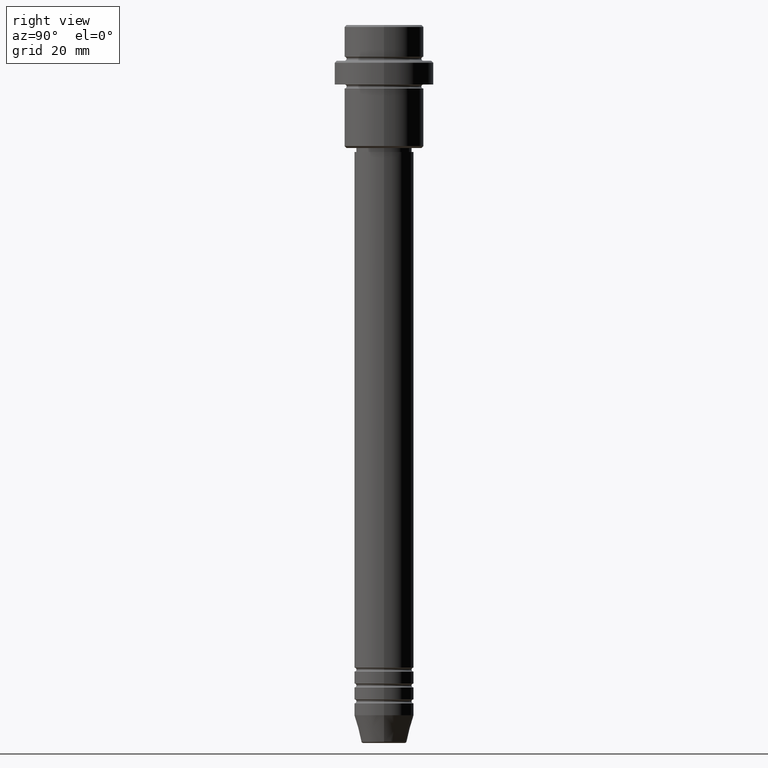
[diagram: clean part render]
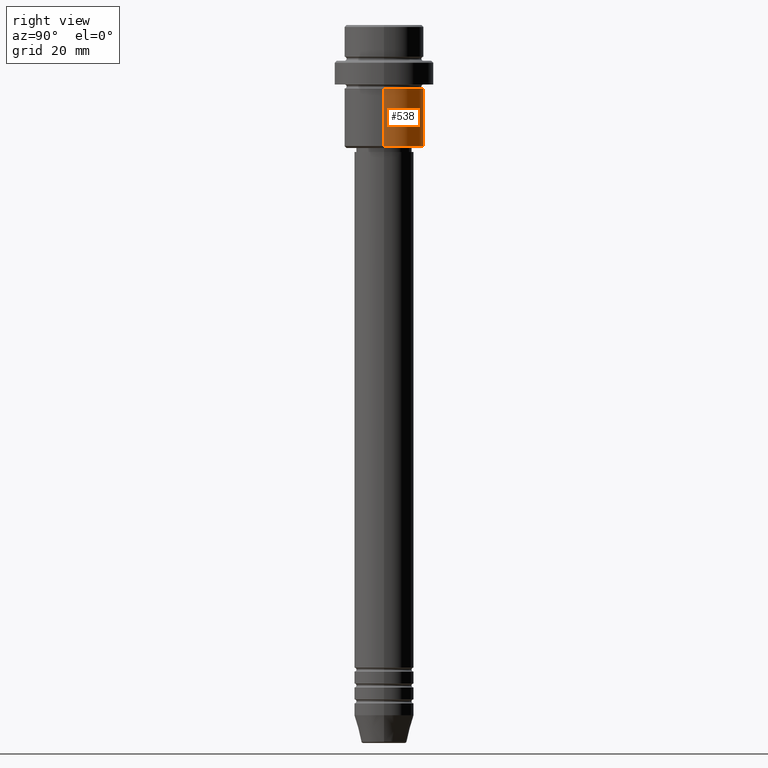
[diagram: same view with one face highlighted and labeled with its STEP entity id]
A machine part, right view. The second image highlights one B-rep face of the part: STEP entity #538.
In plain terms, the highlighted cylindrical surface (partial cylindrical patch) has radius 10 mm, axis along (-0, -0, 1).
Its self-contained STEP definition (entity closure, byte-faithful):
#28 = ORIENTED_EDGE ( 'NONE', *, *, #623, .F. ) ;
#106 = EDGE_LOOP ( 'NONE', ( #928, #1250, #28, #364 ) ) ;
#110 = AXIS2_PLACEMENT_3D ( 'NONE', #1334, #240, #455 ) ;
#172 = VECTOR ( 'NONE', #1078, 1000.000000000000000 ) ;
#240 = DIRECTION ( 'NONE',  ( -0.000000000000000000, -0.000000000000000000, 1.000000000000000000 ) ) ;
#317 = EDGE_CURVE ( 'NONE', #660, #602, #973, .T. ) ;
#319 = CARTESIAN_POINT ( 'NONE',  ( 0.000000000000000000, 0.000000000000000000, 0.000000000000000000 ) ) ;
#364 = ORIENTED_EDGE ( 'NONE', *, *, #394, .F. ) ;
#394 = EDGE_CURVE ( 'NONE', #1058, #697, #483, .T. ) ;
#419 = DIRECTION ( 'NONE',  ( -1.000000000000000000, 0.000000000000000000, 0.000000000000000000 ) ) ;
#435 = CYLINDRICAL_SURFACE ( 'NONE', #635, 9.999999999999998224 ) ;
#439 = CARTESIAN_POINT ( 'NONE',  ( 9.999999999999998224, 0.000000000000000000, -30.49999999999995381 ) ) ;
#455 = DIRECTION ( 'NONE',  ( 1.000000000000000000, 0.000000000000000000, 0.000000000000000000 ) ) ;
#483 = LINE ( 'NONE', #858, #1406 ) ;
#497 = CIRCLE ( 'NONE', #1074, 9.999999999999998224 ) ;
#512 = EDGE_CURVE ( 'NONE', #1058, #660, #497, .T. ) ;
#538 = ADVANCED_FACE ( 'NONE', ( #1291 ), #435, .T. ) ;
#602 = VERTEX_POINT ( 'NONE', #1213 ) ;
#623 = EDGE_CURVE ( 'NONE', #697, #602, #1135, .T. ) ;
#635 = AXIS2_PLACEMENT_3D ( 'NONE', #319, #746, #1191 ) ;
#639 = CARTESIAN_POINT ( 'NONE',  ( -9.999999999999998224, 1.224646799147353059E-15, 0.000000000000000000 ) ) ;
#660 = VERTEX_POINT ( 'NONE', #665 ) ;
#665 = CARTESIAN_POINT ( 'NONE',  ( -9.999999999999998224, 1.224646799147353059E-15, -30.49999999999995381 ) ) ;
#697 = VERTEX_POINT ( 'NONE', #905 ) ;
#746 = DIRECTION ( 'NONE',  ( -0.000000000000000000, -0.000000000000000000, 1.000000000000000000 ) ) ;
#858 = CARTESIAN_POINT ( 'NONE',  ( 9.999999999999998224, 0.000000000000000000, 0.000000000000000000 ) ) ;
#879 = DIRECTION ( 'NONE',  ( -0.000000000000000000, -0.000000000000000000, 1.000000000000000000 ) ) ;
#905 = CARTESIAN_POINT ( 'NONE',  ( 9.999999999999998224, 0.000000000000000000, -16.00000000000000000 ) ) ;
#928 = ORIENTED_EDGE ( 'NONE', *, *, #512, .T. ) ;
#972 = DIRECTION ( 'NONE',  ( -0.000000000000000000, -0.000000000000000000, 1.000000000000000000 ) ) ;
#973 = LINE ( 'NONE', #639, #172 ) ;
#1058 = VERTEX_POINT ( 'NONE', #439 ) ;
#1074 = AXIS2_PLACEMENT_3D ( 'NONE', #1381, #972, #419 ) ;
#1078 = DIRECTION ( 'NONE',  ( -0.000000000000000000, -0.000000000000000000, 1.000000000000000000 ) ) ;
#1135 = CIRCLE ( 'NONE', #110, 9.999999999999998224 ) ;
#1191 = DIRECTION ( 'NONE',  ( 1.000000000000000000, 0.000000000000000000, 0.000000000000000000 ) ) ;
#1213 = CARTESIAN_POINT ( 'NONE',  ( -9.999999999999998224, 1.224646799147353059E-15, -16.00000000000000000 ) ) ;
#1250 = ORIENTED_EDGE ( 'NONE', *, *, #317, .T. ) ;
#1291 = FACE_OUTER_BOUND ( 'NONE', #106, .T. ) ;
#1334 = CARTESIAN_POINT ( 'NONE',  ( 0.000000000000000000, 0.000000000000000000, -16.00000000000000000 ) ) ;
#1381 = CARTESIAN_POINT ( 'NONE',  ( 0.000000000000000000, 0.000000000000000000, -30.49999999999995381 ) ) ;
#1406 = VECTOR ( 'NONE', #879, 1000.000000000000000 ) ;